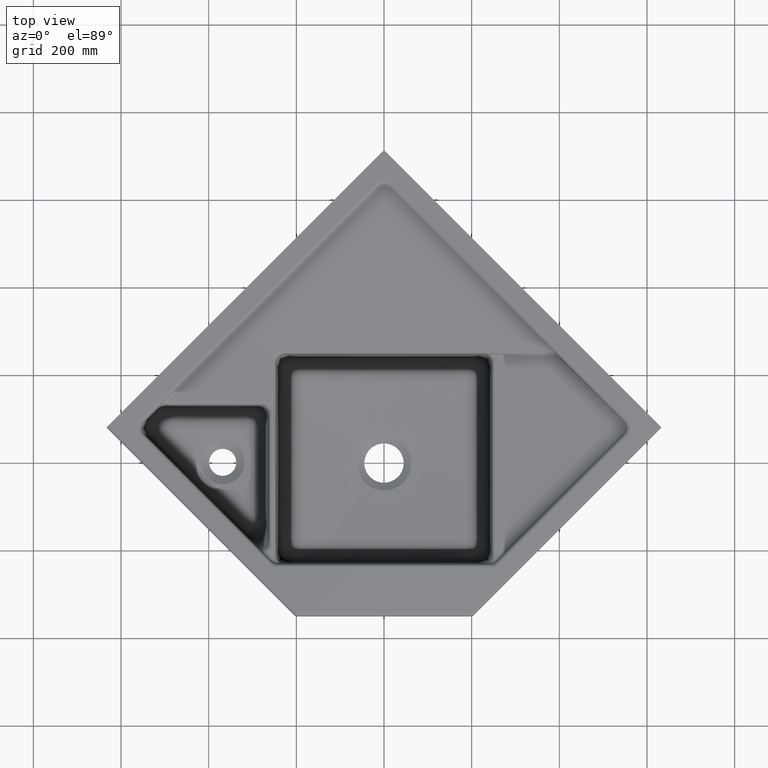
[diagram: clean part render]
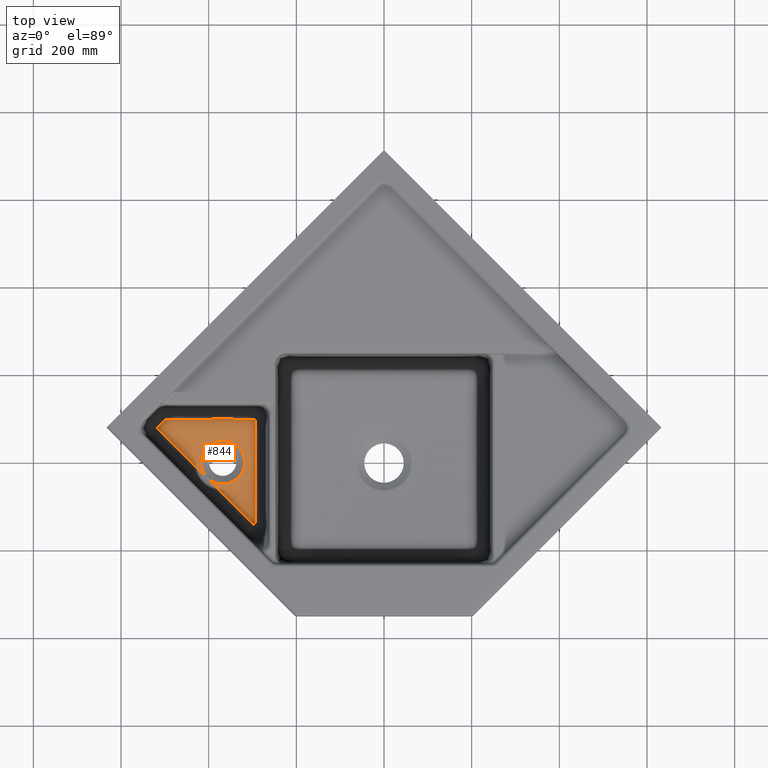
[diagram: same view with one face highlighted and labeled with its STEP entity id]
A machine part, top view. The second image highlights one B-rep face of the part: STEP entity #844.
In plain terms, the highlighted conical surface has half-angle 86 deg.
Its self-contained STEP definition (entity closure, byte-faithful):
#44=CONICAL_SURFACE('',#6119,181.572832907504,86.);
#485=CIRCLE('',#6114,50.);
#533=FACE_BOUND('',#1816,.T.);
#534=FACE_BOUND('',#1817,.T.);
#844=ADVANCED_FACE('',(#533,#534),#44,.F.);
#1816=EDGE_LOOP('',(#3364));
#1817=EDGE_LOOP('',(#3365,#3366,#3367,#3368,#3369));
#2071=(
BOUNDED_CURVE()
B_SPLINE_CURVE(3,(#29051,#29052,#29053,#29054,#29055,#29056,#29057,#29058,
#29059,#29060,#29061,#29062,#29063,#29064,#29065,#29066,#29067,#29068,#29069,
#29070,#29071,#29072),.UNSPECIFIED.,.F.,.F.)
B_SPLINE_CURVE_WITH_KNOTS((4,2,2,2,2,2,2,2,2,2,4),(0.,0.107957153672218,
0.236382291603915,0.364807429535612,0.429019998501461,0.493232567467309,
0.557445136433158,0.621657705399007,0.750082843330704,0.878507981262401,
1.),.UNSPECIFIED.)
CURVE()
GEOMETRIC_REPRESENTATION_ITEM()
RATIONAL_B_SPLINE_CURVE((0.999999729162598,0.999999729675012,0.999999730280481,
0.999999731969235,0.999999733118206,0.999999736316725,0.999999738495285,
0.999999742126813,0.999999743369011,0.999999745110873,0.999999745542896,
0.999999745057458,0.999999744172454,0.999999741968157,0.999999740688231,
0.999999737166174,0.99999973526162,0.999999732400473,0.999999731370477,
0.999999729755558,0.999999729154286,0.999999728647553))
REPRESENTATION_ITEM('')
);
#2072=(
BOUNDED_CURVE()
B_SPLINE_CURVE(3,(#29775,#29776,#29777,#29778,#29779,#29780,#29781,#29782,
#29783,#29784,#29785,#29786,#29787,#29788,#29789,#29790),.UNSPECIFIED.,
 .F.,.F.)
B_SPLINE_CURVE_WITH_KNOTS((4,2,2,2,2,2,2,4),(0.,0.12276238043006,0.251637249029151,
0.380512117628242,0.509386986227334,0.638261854826425,0.767136723425517,
1.),.UNSPECIFIED.)
CURVE()
GEOMETRIC_REPRESENTATION_ITEM()
RATIONAL_B_SPLINE_CURVE((0.999999999999562,0.999999999999563,0.999999999999565,
0.999999999999569,0.999999999999571,0.999999999999575,0.999999999999577,
0.999999999999578,0.999999999999577,0.999999999999575,0.999999999999572,
0.999999999999568,0.999999999999566,0.999999999999561,0.999999999999559,
0.999999999999557))
REPRESENTATION_ITEM('')
);
#3364=ORIENTED_EDGE('',*,*,#5120,.F.);
#3365=ORIENTED_EDGE('',*,*,#5121,.F.);
#3366=ORIENTED_EDGE('',*,*,#5127,.F.);
#3367=ORIENTED_EDGE('',*,*,#5128,.F.);
#3368=ORIENTED_EDGE('',*,*,#5136,.T.);
#3369=ORIENTED_EDGE('',*,*,#5137,.T.);
#4350=VERTEX_POINT('',#29049);
#4351=VERTEX_POINT('',#29073);
#4352=VERTEX_POINT('',#29074);
#4356=VERTEX_POINT('',#29299);
#4357=VERTEX_POINT('',#29791);
#4364=VERTEX_POINT('',#30026);
#5120=EDGE_CURVE('',#4350,#4350,#485,.T.);
#5121=EDGE_CURVE('',#4351,#4352,#2071,.T.);
#5127=EDGE_CURVE('',#4356,#4351,#5713,.T.);
#5128=EDGE_CURVE('',#4357,#4356,#2072,.T.);
#5136=EDGE_CURVE('',#4357,#4364,#5719,.T.);
#5137=EDGE_CURVE('',#4364,#4352,#5720,.T.);
#5713=B_SPLINE_CURVE_WITH_KNOTS('',3,(#29300,#29301,#29302,#29303,#29304,
#29305,#29306,#29307,#29308,#29309,#29310,#29311,#29312,#29313,#29314,#29315,
#29316,#29317,#29318),.UNSPECIFIED.,.F.,.F.,(4,1,1,1,1,1,1,1,1,1,1,1,1,
1,1,1,4),(0.,0.0625,0.125,0.1875,0.25,0.3125,0.375,0.4375,0.5,0.5625,0.625,
0.6875,0.75,0.8125,0.875,0.9375,1.),.UNSPECIFIED.);
#5719=B_SPLINE_CURVE_WITH_KNOTS('',3,(#29964,#29965,#29966,#29967,#29968,
#29969,#29970,#29971,#29972,#29973,#29974,#29975,#29976,#29977,#29978,#29979,
#29980,#29981,#29982,#29983,#29984,#29985,#29986,#29987,#29988,#29989,#29990,
#29991,#29992,#29993,#29994,#29995,#29996,#29997,#29998,#29999,#30000,#30001,
#30002,#30003,#30004,#30005,#30006,#30007,#30008,#30009,#30010,#30011,#30012,
#30013,#30014,#30015,#30016,#30017,#30018,#30019,#30020,#30021,#30022,#30023,
#30024,#30025),.UNSPECIFIED.,.F.,.F.,(4,2,2,2,2,2,2,2,2,2,2,2,2,2,2,2,2,
2,2,2,2,2,2,2,2,2,2,2,2,2,4),(0.,0.0624999999999958,0.0937499999999937,
0.109374999999993,0.117187499999992,0.124999999999992,0.187499999999989,
0.218749999999987,0.234374999999987,0.249999999999986,0.374999999999985,
0.437499999999985,0.468749999999984,0.484374999999983,0.499999999999983,
0.562499999999984,0.593749999999984,0.609374999999985,0.617187499999985,
0.624999999999986,0.687499999999988,0.718749999999988,0.734374999999989,
0.742187499999989,0.749999999999989,0.812499999999992,0.843749999999993,
0.859374999999994,0.867187499999994,0.874999999999995,1.),.UNSPECIFIED.);
#5720=B_SPLINE_CURVE_WITH_KNOTS('',3,(#30027,#30028,#30029,#30030),
 .UNSPECIFIED.,.F.,.F.,(4,4),(0.,1.),.UNSPECIFIED.);
#6114=AXIS2_PLACEMENT_3D('',#29048,#6736,#6737);
#6119=AXIS2_PLACEMENT_3D('',#30031,#6746,#6747);
#6736=DIRECTION('',(0.,1.38777878078146E-16,1.));
#6737=DIRECTION('',(0.,-1.,2.77555756156289E-16));
#6746=DIRECTION('',(0.,0.,1.));
#6747=DIRECTION('',(1.,0.,-6.70783806658274E-18));
#29048=CARTESIAN_POINT('',(-368.,-6.76380947008404E-14,100.));
#29049=CARTESIAN_POINT('',(-318.,-6.42219158256708E-14,100.));
#29051=CARTESIAN_POINT('',(-298.06925515787,-141.279461787072,107.526831366926));
#29052=CARTESIAN_POINT('',(-305.878657347599,-133.478663293052,106.795555347226));
#29053=CARTESIAN_POINT('',(-313.697420403411,-125.680948029547,106.072350894052));
#29054=CARTESIAN_POINT('',(-330.857668500554,-108.613713247894,104.522006486355));
#29055=CARTESIAN_POINT('',(-340.204684889461,-99.3473048099186,103.699050165654));
#29056=CARTESIAN_POINT('',(-359.028448968624,-80.8056142802859,102.165464313437));
#29057=CARTESIAN_POINT('',(-368.509473783184,-71.541569930181,101.446908933027));
#29058=CARTESIAN_POINT('',(-382.947112934049,-57.4971570874398,100.640027813452));
#29059=CARTESIAN_POINT('',(-387.797462304691,-52.7858626109821,100.419532606958));
#29060=CARTESIAN_POINT('',(-397.529122387282,-43.2515427793666,100.137387158517));
#29061=CARTESIAN_POINT('',(-402.408144294299,-38.4224222447639,100.078485291912));
#29062=CARTESIAN_POINT('',(-412.072305750522,-28.7026714365918,100.150265555804));
#29063=CARTESIAN_POINT('',(-416.851129174881,-23.8224074051356,100.279777703029));
#29064=CARTESIAN_POINT('',(-426.306533474613,-14.1206464880993,100.676605052383));
#29065=CARTESIAN_POINT('',(-430.988011379174,-9.29904809407086,100.941723038959));
#29066=CARTESIAN_POINT('',(-444.975820763313,5.0599377901388,101.850847228853));
#29067=CARTESIAN_POINT('',(-454.236756393258,14.5011929833454,102.599751508399));
#29068=CARTESIAN_POINT('',(-472.774768937773,33.2759656681392,104.175881280079));
#29069=CARTESIAN_POINT('',(-482.043340909029,42.6095842897815,105.009650275325));
#29070=CARTESIAN_POINT('',(-500.090968948283,60.7332487488793,106.664560870752));
#29071=CARTESIAN_POINT('',(-508.868338108602,69.5238799912784,107.485370632529));
#29072=CARTESIAN_POINT('',(-517.649262854527,78.3053492576924,108.314171930807));
#29073=CARTESIAN_POINT('',(-298.069260335771,-141.279464107513,107.526860924209));
#29074=CARTESIAN_POINT('',(-517.649251249145,78.3053606965591,108.314174546819));
#29299=CARTESIAN_POINT('',(-294.052211860104,-139.631330469036,107.552228979996));
#29300=CARTESIAN_POINT('',(-294.052218043093,-139.631322556641,107.552356959771));
#29301=CARTESIAN_POINT('',(-294.122215283717,-139.690691190101,107.553739587559));
#29302=CARTESIAN_POINT('',(-294.264750377767,-139.806415242577,107.556230119903));
#29303=CARTESIAN_POINT('',(-294.485656148234,-139.970905437096,107.559217781926));
#29304=CARTESIAN_POINT('',(-294.713144826626,-140.126247170955,107.561454113482));
#29305=CARTESIAN_POINT('',(-294.946697625537,-140.272385160298,107.562957338894));
#29306=CARTESIAN_POINT('',(-295.185795942014,-140.409262881085,107.563739906283));
#29307=CARTESIAN_POINT('',(-295.430012974683,-140.536908193773,107.563817853351));
#29308=CARTESIAN_POINT('',(-295.678922586228,-140.655348005673,107.563206785826));
#29309=CARTESIAN_POINT('',(-295.932098722667,-140.764607640851,107.561922302112));
#29310=CARTESIAN_POINT('',(-296.189114672429,-140.864712377196,107.559980008395));
#29311=CARTESIAN_POINT('',(-296.449668563513,-140.955331693719,107.557367976498));
#29312=CARTESIAN_POINT('',(-296.713458322986,-141.03613434476,107.554074223494));
#29313=CARTESIAN_POINT('',(-296.980180799806,-141.10679051626,107.550086886161));
#29314=CARTESIAN_POINT('',(-297.249532394796,-141.166971408631,107.545394172807));
#29315=CARTESIAN_POINT('',(-297.521086886225,-141.216350838536,107.539988183747));
#29316=CARTESIAN_POINT('',(-297.794416919118,-141.254603999524,107.53386073142));
#29317=CARTESIAN_POINT('',(-297.97753559559,-141.272472931284,107.529291404689));
#29318=CARTESIAN_POINT('',(-298.069248190585,-141.279445593756,107.526882613671));
#29775=CARTESIAN_POINT('',(-293.897951923221,97.9462824136631,105.092014675052));
#29776=CARTESIAN_POINT('',(-293.846370518147,88.3075915325808,104.556571642934));
#29777=CARTESIAN_POINT('',(-293.781921728266,78.6515279671069,104.049020771179));
#29778=CARTESIAN_POINT('',(-293.625066112502,58.78946152592,103.112179527243));
#29779=CARTESIAN_POINT('',(-293.52987396304,48.5786248446867,102.687944014245));
#29780=CARTESIAN_POINT('',(-293.354360406198,28.0410965378599,102.042515296309));
#29781=CARTESIAN_POINT('',(-293.277256914103,17.7059691400533,101.824888914328));
#29782=CARTESIAN_POINT('',(-293.228286401865,-3.00100788968527,101.686551640108));
#29783=CARTESIAN_POINT('',(-293.260422759313,-13.3638288586818,101.768010420657));
#29784=CARTESIAN_POINT('',(-293.397055394231,-33.9797190077517,102.194543717649));
#29785=CARTESIAN_POINT('',(-293.494495328915,-44.2327304838762,102.534797165));
#29786=CARTESIAN_POINT('',(-293.672960603514,-64.6355944173568,103.367040616864));
#29787=CARTESIAN_POINT('',(-293.754663206382,-74.7892094997156,103.85786583492));
#29788=CARTESIAN_POINT('',(-293.940008582092,-103.21557095764,105.3463559304));
#29789=CARTESIAN_POINT('',(-294.010878063972,-121.432830432739,106.427407052706));
#29790=CARTESIAN_POINT('',(-294.05220567708,-139.631338381431,107.552101000222));
#29791=CARTESIAN_POINT('',(-293.897954945389,97.9462854937264,105.092020084405));
#29964=CARTESIAN_POINT('',(-293.897956468863,97.9462919215301,105.092023917872));
#29965=CARTESIAN_POINT('',(-298.310859203766,97.9730263696273,104.907335417624));
#29966=CARTESIAN_POINT('',(-302.631707351253,98.0003447578445,104.737223935248));
#29967=CARTESIAN_POINT('',(-309.001821053526,98.0404332002045,104.503922238492));
#29968=CARTESIAN_POINT('',(-311.106758757533,98.0536734002227,104.429799260708));
#29969=CARTESIAN_POINT('',(-314.24076240354,98.073189145441,104.324081175734));
#29970=CARTESIAN_POINT('',(-315.281536170326,98.0796364564324,104.289752877693));
#29971=CARTESIAN_POINT('',(-316.837444774917,98.0891897956289,104.239627026057));
#29972=CARTESIAN_POINT('',(-317.355206044335,98.0923545308263,104.223146174749));
#29973=CARTESIAN_POINT('',(-318.389081834105,98.0986379125778,104.190640003942));
#29974=CARTESIAN_POINT('',(-318.873087929818,98.1015639420768,104.175598947783));
#29975=CARTESIAN_POINT('',(-323.800162930043,98.1311222924101,104.024562595369));
#29976=CARTESIAN_POINT('',(-328.099343020868,98.1533646590013,103.907340334424));
#29977=CARTESIAN_POINT('',(-334.487646840133,98.1861673278754,103.757055354806));
#29978=CARTESIAN_POINT('',(-336.607148558801,98.1969058358597,103.711218430233));
#29979=CARTESIAN_POINT('',(-339.780264819782,98.2121747349926,103.648850146324));
#29980=CARTESIAN_POINT('',(-340.836955752237,98.2171143180097,103.629125235513));
#29981=CARTESIAN_POINT('',(-342.949862813279,98.2264660225883,103.591804448207));
#29982=CARTESIAN_POINT('',(-343.975409412324,98.2307628831113,103.57468834001));
#29983=CARTESIAN_POINT('',(-353.76249773159,98.2676529851463,103.421588191299));
#29984=CARTESIAN_POINT('',(-362.184951697815,98.2838291734863,103.362019137619));
#29985=CARTESIAN_POINT('',(-375.094619839301,98.277273719222,103.38719056434));
#29986=CARTESIAN_POINT('',(-379.345032989329,98.2651120149834,103.414389931584));
#29987=CARTESIAN_POINT('',(-385.742693511545,98.2479794072975,103.483402319957));
#29988=CARTESIAN_POINT('',(-387.878871228384,98.242108233452,103.511108672332));
#29989=CARTESIAN_POINT('',(-391.100500230207,98.2322038913836,103.559721535272));
#29990=CARTESIAN_POINT('',(-392.177263696159,98.2287009236251,103.577101378648));
#29991=CARTESIAN_POINT('',(-394.338463610721,98.2209369061391,103.614212176858));
#29992=CARTESIAN_POINT('',(-395.461168029097,98.2165039992822,103.634677665005));
#29993=CARTESIAN_POINT('',(-400.715772589831,98.192944024574,103.735537551266));
#29994=CARTESIAN_POINT('',(-404.925104356554,98.1695401744548,103.832721588671));
#29995=CARTESIAN_POINT('',(-411.311863625541,98.1341308794595,104.003241837376));
#29996=CARTESIAN_POINT('',(-413.452785207273,98.122126432112,104.064205952377));
#29997=CARTESIAN_POINT('',(-416.689027708441,98.1035772458763,104.161838173027));
#29998=CARTESIAN_POINT('',(-417.771910115661,98.0972980407804,104.195413254602));
#29999=CARTESIAN_POINT('',(-419.403217018645,98.0876621130074,104.247322389002));
#30000=CARTESIAN_POINT('',(-419.948149338013,98.0844136995546,104.264883185808));
#30001=CARTESIAN_POINT('',(-421.040464488098,98.0778291809653,104.300520283432));
#30002=CARTESIAN_POINT('',(-421.62352808722,98.0742727338439,104.319788877668));
#30003=CARTESIAN_POINT('',(-426.240412120645,98.0457628303852,104.474064712339));
#30004=CARTESIAN_POINT('',(-430.404461855443,98.0195254305052,104.625326825804));
#30005=CARTESIAN_POINT('',(-436.771483730892,97.9796543160611,104.873412053308));
#30006=CARTESIAN_POINT('',(-438.913886635466,97.9662722236319,104.959639138693));
#30007=CARTESIAN_POINT('',(-442.16060855724,97.9462652152391,105.094277781097));
#30008=CARTESIAN_POINT('',(-443.248363376966,97.9396087493518,105.140040330953));
#30009=CARTESIAN_POINT('',(-444.888597886878,97.9296860971929,105.210008659318));
#30010=CARTESIAN_POINT('',(-445.436776119866,97.9263890332772,105.233552186037));
#30011=CARTESIAN_POINT('',(-446.536050819057,97.9198249936322,105.281080740668));
#30012=CARTESIAN_POINT('',(-447.135622465468,97.9162731993995,105.307189224592));
#30013=CARTESIAN_POINT('',(-451.672566669441,97.8896164944961,105.505930127069));
#30014=CARTESIAN_POINT('',(-455.799214407417,97.867201235149,105.695007364941));
#30015=CARTESIAN_POINT('',(-462.143592289458,97.8336915972774,105.997251208588));
#30016=CARTESIAN_POINT('',(-464.284064249966,97.8225770778811,106.101103820943));
#30017=CARTESIAN_POINT('',(-467.534550932489,97.8061513556856,106.261539736185));
#30018=CARTESIAN_POINT('',(-468.624673380497,97.800720146462,106.315794540717));
#30019=CARTESIAN_POINT('',(-470.269930064377,97.792688540797,106.398340996693));
#30020=CARTESIAN_POINT('',(-470.820027629427,97.7900307486633,106.426050523548));
#30021=CARTESIAN_POINT('',(-471.923600289991,97.7847647382978,106.481857660317));
#30022=CARTESIAN_POINT('',(-472.532000097711,97.7819015521669,106.512754235429));
#30023=CARTESIAN_POINT('',(-481.036226709466,97.7424240075672,106.94612990161));
#30024=CARTESIAN_POINT('',(-489.46680082388,97.708245752683,107.397992508908));
#30025=CARTESIAN_POINT('',(-498.34947520494,97.6791707944308,107.893834743569));
#30026=CARTESIAN_POINT('',(-498.349475578189,97.6791685523879,107.893828203688));
#30027=CARTESIAN_POINT('',(-498.34947627251,97.6791668146325,107.893834636422));
#30028=CARTESIAN_POINT('',(-504.779131950128,91.232910922309,107.983315998334));
#30029=CARTESIAN_POINT('',(-511.189266543161,84.7970573198095,108.124393053154));
#30030=CARTESIAN_POINT('',(-517.649252131851,78.3053616697281,108.31417752994));
#30031=CARTESIAN_POINT('',(-368.,-3.21109579128354E-14,109.200468743598));